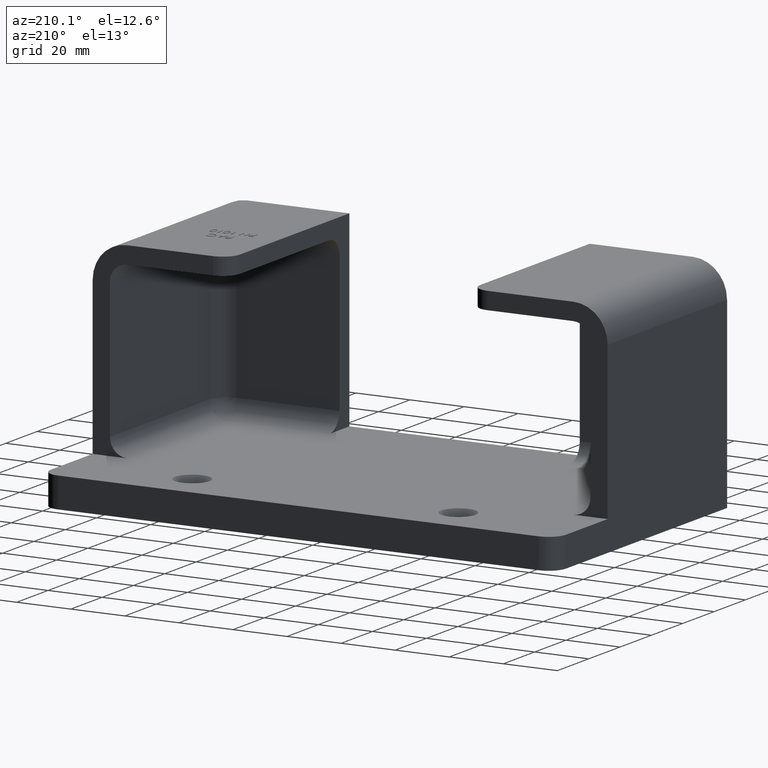
[diagram: clean part render]
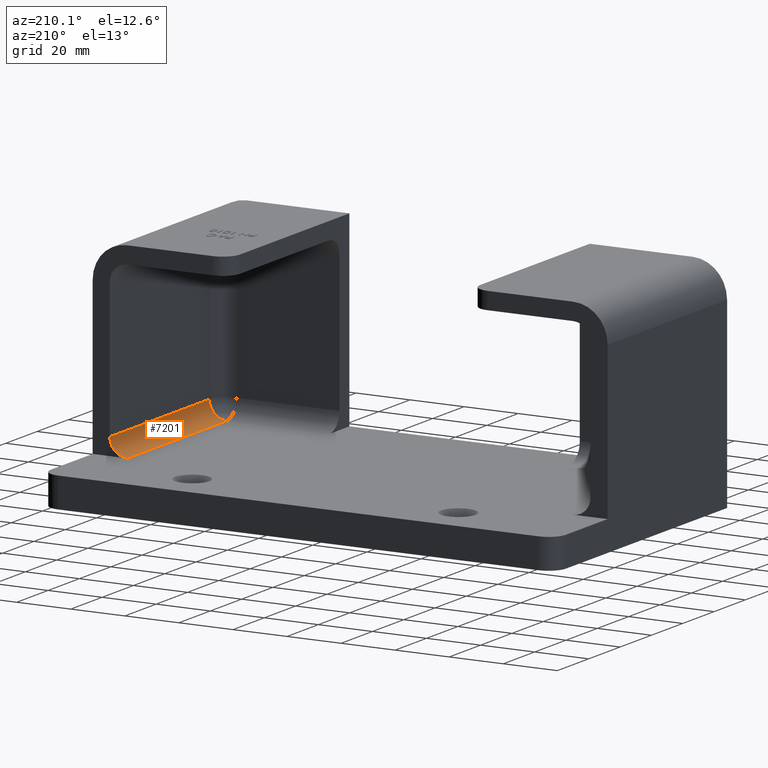
[diagram: same view with one face highlighted and labeled with its STEP entity id]
A machine part, auxiliary view. The second image highlights one B-rep face of the part: STEP entity #7201.
In plain terms, the highlighted cylindrical surface (edge-blend (fillet) strip) has radius 6.35 mm, axis along (0, -1, 0).
Its self-contained STEP definition (entity closure, byte-faithful):
#654 = ORIENTED_EDGE ( 'NONE', *, *, #2887, .F. ) ;
#725 = LINE ( 'NONE', #942, #727 ) ;
#727 = VECTOR ( 'NONE', #953, 39.37007874015748100 ) ;
#736 = LINE ( 'NONE', #962, #737 ) ;
#737 = VECTOR ( 'NONE', #963, 39.37007874015748100 ) ;
#755 = CIRCLE ( 'NONE', #2570, 0.2500000000000000000 ) ;
#768 = CIRCLE ( 'NONE', #2566, 0.2500000000000000600 ) ;
#868 = ORIENTED_EDGE ( 'NONE', *, *, #2904, .F. ) ;
#869 = ORIENTED_EDGE ( 'NONE', *, *, #2892, .F. ) ;
#871 = ORIENTED_EDGE ( 'NONE', *, *, #2915, .F. ) ;
#942 = CARTESIAN_POINT ( 'NONE',  ( 3.500000000000000000, 0.2500000000000000000, 0.6875000000000001100 ) ) ;
#953 = DIRECTION ( 'NONE',  ( -0.0000000000000000000, -1.000000000000000000, -0.0000000000000000000 ) ) ;
#962 = CARTESIAN_POINT ( 'NONE',  ( 3.250000000000000400, 3.000000000000000400, 0.4375000000000000600 ) ) ;
#963 = DIRECTION ( 'NONE',  ( 0.0000000000000000000, 1.000000000000000000, 0.0000000000000000000 ) ) ;
#986 = CARTESIAN_POINT ( 'NONE',  ( 3.250000000000000400, 3.000000000000000400, 0.6875000000000000000 ) ) ;
#992 = DIRECTION ( 'NONE',  ( 0.0000000000000000000, -1.000000000000000000, 0.0000000000000000000 ) ) ;
#993 = DIRECTION ( 'NONE',  ( 0.0000000000000000000, 0.0000000000000000000, -1.000000000000000000 ) ) ;
#1029 = CARTESIAN_POINT ( 'NONE',  ( 3.250000000000000000, 0.5000000000000000000, 0.6875000000000000000 ) ) ;
#1031 = DIRECTION ( 'NONE',  ( -0.0000000000000000000, 1.000000000000000000, 0.0000000000000000000 ) ) ;
#1032 = DIRECTION ( 'NONE',  ( 0.0000000000000000000, 0.0000000000000000000, 1.000000000000000000 ) ) ;
#1532 = EDGE_LOOP ( 'NONE', ( #868, #869, #871, #654 ) ) ;
#1684 = FACE_OUTER_BOUND ( 'NONE', #1532, .T. ) ;
#1686 = CYLINDRICAL_SURFACE ( 'NONE', #2474, 0.2500000000000000000 ) ;
#2474 = AXIS2_PLACEMENT_3D ( 'NONE', #4792, #4787, #4790 ) ;
#2566 = AXIS2_PLACEMENT_3D ( 'NONE', #1029, #1031, #1032 ) ;
#2570 = AXIS2_PLACEMENT_3D ( 'NONE', #986, #992, #993 ) ;
#2887 = EDGE_CURVE ( 'NONE', #5460, #5461, #725, .T. ) ;
#2892 = EDGE_CURVE ( 'NONE', #5467, #5468, #736, .T. ) ;
#2904 = EDGE_CURVE ( 'NONE', #5468, #5460, #755, .T. ) ;
#2915 = EDGE_CURVE ( 'NONE', #5461, #5467, #768, .T. ) ;
#4787 = DIRECTION ( 'NONE',  ( 0.0000000000000000000, -1.000000000000000000, 0.0000000000000000000 ) ) ;
#4790 = DIRECTION ( 'NONE',  ( 0.0000000000000000000, 0.0000000000000000000, -1.000000000000000000 ) ) ;
#4792 = CARTESIAN_POINT ( 'NONE',  ( 3.250000000000000400, 0.2500000000000000000, 0.6875000000000000000 ) ) ;
#5460 = VERTEX_POINT ( 'NONE', #6297 ) ;
#5461 = VERTEX_POINT ( 'NONE', #6298 ) ;
#5467 = VERTEX_POINT ( 'NONE', #6304 ) ;
#5468 = VERTEX_POINT ( 'NONE', #6305 ) ;
#6297 = CARTESIAN_POINT ( 'NONE',  ( 3.500000000000000000, 3.000000000000000400, 0.6875000000000001100 ) ) ;
#6298 = CARTESIAN_POINT ( 'NONE',  ( 3.500000000000000000, 0.5000000000000000000, 0.6875000000000001100 ) ) ;
#6304 = CARTESIAN_POINT ( 'NONE',  ( 3.250000000000000400, 0.5000000000000000000, 0.4375000000000000600 ) ) ;
#6305 = CARTESIAN_POINT ( 'NONE',  ( 3.250000000000000400, 3.000000000000000400, 0.4374999999999998900 ) ) ;
#7201 = ADVANCED_FACE ( 'NONE', ( #1684 ), #1686, .F. ) ;